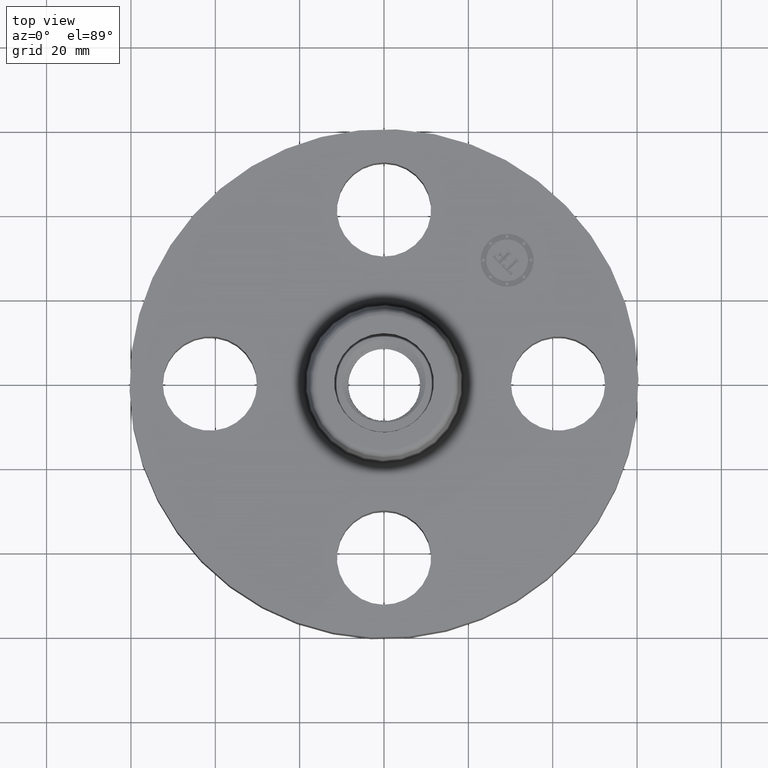
[diagram: clean part render]
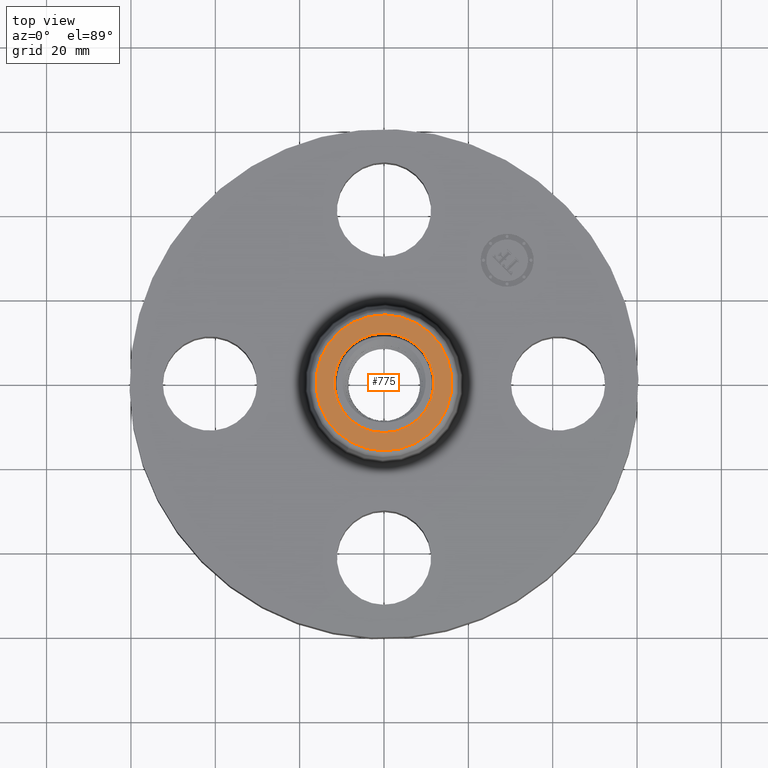
[diagram: same view with one face highlighted and labeled with its STEP entity id]
A machine part, top view. The second image highlights one B-rep face of the part: STEP entity #775.
In plain terms, the highlighted planar face has unit normal (0, 0, -1).
Its self-contained STEP definition (entity closure, byte-faithful):
#368=AXIS2_PLACEMENT_3D('Circle Axis2P3D',#366,#367,$) ;
#394=AXIS2_PLACEMENT_3D('Circle Axis2P3D',#392,#393,$) ;
#604=AXIS2_PLACEMENT_3D('Circle Axis2P3D',#602,#603,$) ;
#623=AXIS2_PLACEMENT_3D('Circle Axis2P3D',#621,#622,$) ;
#765=AXIS2_PLACEMENT_3D('Plane Axis2P3D',#762,#763,#764) ;
#366=CARTESIAN_POINT('Axis2P3D Location',(0.,0.,1.25000000001)) ;
#370=CARTESIAN_POINT('Vertex',(-0.222932875452,0.408075891281,1.25000000001)) ;
#372=CARTESIAN_POINT('Vertex',(0.222932875452,-0.408075891281,1.25000000001)) ;
#392=CARTESIAN_POINT('Axis2P3D Location',(0.,0.,1.25000000001)) ;
#599=CARTESIAN_POINT('Vertex',(0.304153813049,0.556749820299,1.25000000001)) ;
#602=CARTESIAN_POINT('Axis2P3D Location',(0.,0.,1.25000000001)) ;
#606=CARTESIAN_POINT('Vertex',(-0.304153813049,-0.556749820299,1.25000000001)) ;
#621=CARTESIAN_POINT('Axis2P3D Location',(0.,0.,1.25000000001)) ;
#762=CARTESIAN_POINT('Axis2P3D Location',(0.,0.63441303927,1.25000000001)) ;
#367=DIRECTION('Axis2P3D Direction',(0.,0.,0.0393700787402)) ;
#393=DIRECTION('Axis2P3D Direction',(0.,0.,0.0393700787402)) ;
#603=DIRECTION('Axis2P3D Direction',(0.,0.,-0.0393700787402)) ;
#622=DIRECTION('Axis2P3D Direction',(0.,0.,-0.0393700787402)) ;
#763=DIRECTION('Axis2P3D Direction',(0.,0.,-0.0393700787402)) ;
#764=DIRECTION('Axis2P3D XDirection',(0.0393700787402,0.,0.)) ;
#768=ORIENTED_EDGE('',*,*,#608,.F.) ;
#769=ORIENTED_EDGE('',*,*,#625,.F.) ;
#772=ORIENTED_EDGE('',*,*,#374,.T.) ;
#773=ORIENTED_EDGE('',*,*,#396,.T.) ;
#774=FACE_BOUND('',#771,.T.) ;
#775=ADVANCED_FACE('PartBody',(#770,#774),#766,.F.) ;
#369=CIRCLE('generated circle',#368,0.465000000002) ;
#395=CIRCLE('generated circle',#394,0.465000000002) ;
#605=CIRCLE('generated circle',#604,0.63441303927) ;
#624=CIRCLE('generated circle',#623,0.63441303927) ;
#374=EDGE_CURVE('',#371,#373,#369,.F.) ;
#396=EDGE_CURVE('',#373,#371,#395,.F.) ;
#608=EDGE_CURVE('',#600,#607,#605,.T.) ;
#625=EDGE_CURVE('',#607,#600,#624,.T.) ;
#767=EDGE_LOOP('',(#768,#769)) ;
#771=EDGE_LOOP('',(#772,#773)) ;
#770=FACE_OUTER_BOUND('',#767,.T.) ;
#766=PLANE('',#765) ;
#371=VERTEX_POINT('',#370) ;
#373=VERTEX_POINT('',#372) ;
#600=VERTEX_POINT('',#599) ;
#607=VERTEX_POINT('',#606) ;